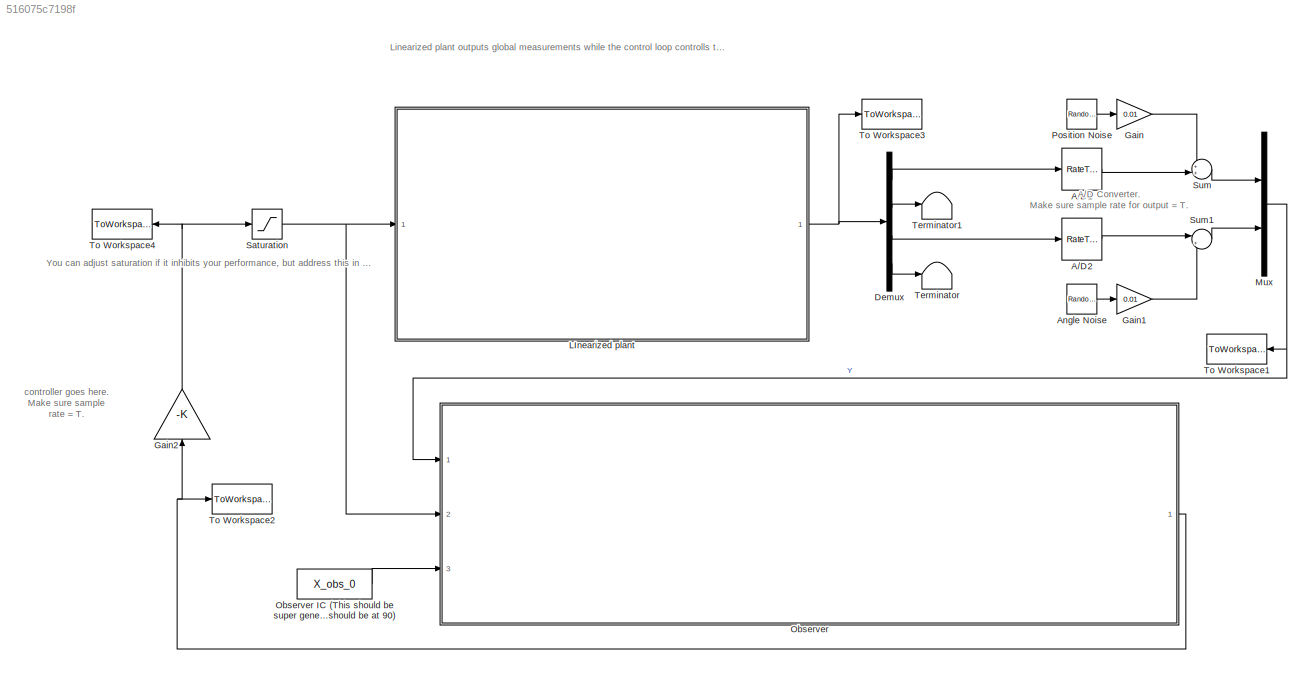
MODEL slx_516075c7198f
KIND model
CONFIG AbsTol = auto
CONFIG EnableMultiTasking = off
CONFIG FixedStep = auto
CONFIG MaxStep = auto
CONFIG MinStep = auto
CONFIG RelTol = 1e-3
CONFIG SampleTimeConstraint = Unconstrained
CONFIG Solver = VariableStepAuto
CONFIG SolverName = VariableStepAuto
CONFIG StartTime = 0.0
CONFIG StopTime = 10.0
BLOCK [RateTransition] A//D1
  OutPortSampleTime = T
BLOCK [RateTransition] A//D2
  OutPortSampleTime = T
BLOCK [RandomNumber] Angle Noise 
  SampleTime = T
  Variance = 0.5
BLOCK [Demux] Demux
  Ports = [1, 4]
BLOCK [Gain] Gain
  Gain = 0.01
BLOCK [Gain] Gain1
  Gain = 0.01
BLOCK [Gain] Gain2
  Gain = -K
  Multiplication = Matrix(K*u) (u vector)
  NameLocation = right
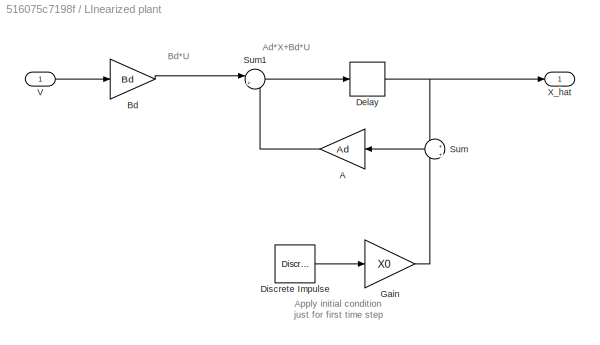
BLOCK [SubSystem] LInearized plant
  Ports = [1, 1]
  RequestExecContextInheritance = off
BLOCK [Gain] LInearized plant/A
  Gain = Ad
  Multiplication = Matrix(K*u) (u vector)
  NameLocation = top
BLOCK [Gain] LInearized plant/Bd
  Gain = Bd
  Multiplication = Matrix(K*u) (u vector)
BLOCK [Delay] LInearized plant/Delay
  DelayLength = 1
  InputPortMap = u0
  Ports = [1, 1]
BLOCK [Reference] LInearized plant/Discrete Impulse  REF=dspsrcs4/Discrete 
Impulse
  Ports = [0, 1]
  SourceBlock = dspsrcs4/Discrete \nImpulse
  SourceProductBaseCode = DS
  SourceType = Discrete Impulse
BLOCK [Gain] LInearized plant/Gain
  Gain = X0
  Multiplication = Matrix(K*u) (u vector)
BLOCK [Sum] LInearized plant/Sum
  Inputs = +|+
  NameLocation = top
  Ports = [2, 1]
BLOCK [Sum] LInearized plant/Sum1
  Inputs = |++
  Ports = [2, 1]
BLOCK [Inport] LInearized plant/V
BLOCK [Outport] LInearized plant/X_hat 
  VectorParamsAs1DForOutWhenUnconnected = off
BLOCK [Mux] Mux
  DisplayOption = bar
  Inputs = 2
  Ports = [2, 1]
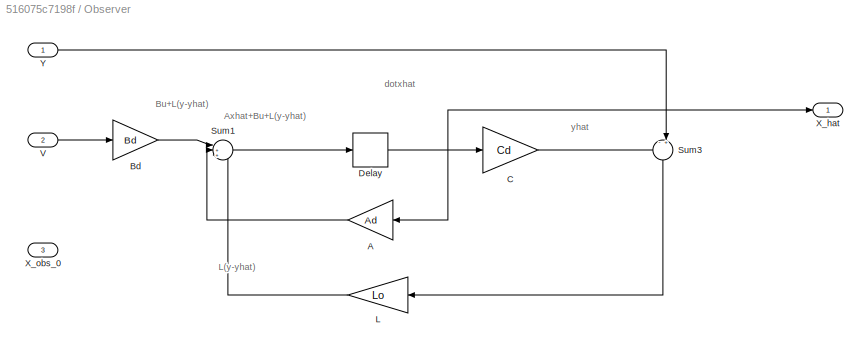
BLOCK [SubSystem] Observer
  Ports = [3, 1]
  RequestExecContextInheritance = off
BLOCK [Constant] Observer IC (This should be super generic - for example, if plant starts at 80 degrees, then this should be at 90)
  Value = X_obs_0
BLOCK [Gain] Observer/A
  Gain = Ad
  Multiplication = Matrix(K*u) (u vector)
  NameLocation = top
BLOCK [Gain] Observer/Bd
  Gain = Bd
  Multiplication = Matrix(K*u) (u vector)
BLOCK [Gain] Observer/C
  Gain = Cd
  Multiplication = Matrix(K*u) (u vector)
BLOCK [Delay] Observer/Delay
  DelayLength = 1
  InputPortMap = u0
  Ports = [1, 1]
BLOCK [Gain] Observer/L
  Gain = Lo
  Multiplication = Matrix(K*u) (u vector)
  NameLocation = top
BLOCK [Sum] Observer/Sum1
  Inputs = |+++
  Ports = [3, 1]
BLOCK [Sum] Observer/Sum3
  Inputs = -+|
  NameLocation = left
  Ports = [2, 1]
BLOCK [Inport] Observer/V
  Port = 2
BLOCK [Outport] Observer/X_hat 
  VectorParamsAs1DForOutWhenUnconnected = off
BLOCK [Inport] Observer/X_obs_0
  Port = 3
BLOCK [Inport] Observer/Y
BLOCK [RandomNumber] Position Noise
  SampleTime = T
  Variance = 0.5
BLOCK [Saturate] Saturation
  LowerLimit = -20
  UpperLimit = 20
BLOCK [Sum] Sum
  Inputs = ++|
  Ports = [2, 1]
BLOCK [Sum] Sum1
  Inputs = |++
  Ports = [2, 1]
BLOCK [Terminator] Terminator
BLOCK [Terminator] Terminator1
BLOCK [ToWorkspace] To Workspace1
  FixptAsFi = on
  MaxDataPoints = inf
  NameLocation = top
  Ports = [1]
  SampleTime = -1
  VariableName = Y_out
BLOCK [ToWorkspace] To Workspace2
  FixptAsFi = on
  MaxDataPoints = inf
  Ports = [1]
  SampleTime = -1
  VariableName = Xst
BLOCK [ToWorkspace] To Workspace3
  FixptAsFi = on
  MaxDataPoints = inf
  Ports = [1]
  SampleTime = -1
  VariableName = XLin
BLOCK [ToWorkspace] To Workspace4
  FixptAsFi = on
  MaxDataPoints = inf
  NameLocation = top
  Ports = [1]
  SampleTime = -1
  VariableName = In
ANNOTATION (root): Linearized plant outputs global measurements while the control loop controlls the deviations from equil
ANNOTATION (root): A/D Converter. Make sure sample rate for output = T.
ANNOTATION (root): You can adjust saturation if it inhibits your performance, but address this in your report for why this is not realistic
ANNOTATION (root): controller goes here. Make sure sample rate = T.
ANNOTATION LInearized plant: Bd*U
ANNOTATION LInearized plant: Ad*X+Bd*U
ANNOTATION LInearized plant: Apply initial condition just for first time step
ANNOTATION Observer: Axhat+Bu+L(y-yhat)
ANNOTATION Observer: Bu+L(y-yhat)
ANNOTATION Observer: L(y-yhat)
ANNOTATION Observer: dotxhat
ANNOTATION Observer: yhat
LINE A//D1:1 -> Sum:2
LINE A//D2:1 -> Sum1:1
LINE Angle Noise :1 -> Gain1:1
LINE Demux:1 -> A//D1:1
LINE Demux:2 -> Terminator1:1
LINE Demux:3 -> A//D2:1
LINE Demux:4 -> Terminator:1
LINE Gain1:1 -> Sum1:2
NET Gain2:1 -> Saturation:1, To Workspace4:1
LINE Gain:1 -> Sum:1
LINE LInearized plant/A:1 -> LInearized plant/Sum1:2
LINE LInearized plant/Bd:1 -> LInearized plant/Sum1:1
NET LInearized plant/Delay:1 -> LInearized plant/Sum:1, LInearized plant/X_hat :1
LINE LInearized plant/Discrete Impulse:1 -> LInearized plant/Gain:1
LINE LInearized plant/Gain:1 -> LInearized plant/Sum:2
LINE LInearized plant/Sum1:1 -> LInearized plant/Delay:1
LINE LInearized plant/Sum:1 -> LInearized plant/A:1
LINE LInearized plant/V:1 -> LInearized plant/Bd:1
NET LInearized plant:1 -> Demux:1, To Workspace3:1
NET Mux:1 -> Observer:1, To Workspace1:1
LINE Observer IC (This should be super generic - for example, if plant starts at 80 degrees, then this should be at 90):1 -> Observer:3
LINE Observer/A:1 -> Observer/Sum1:2
LINE Observer/Bd:1 -> Observer/Sum1:1
LINE Observer/C:1 -> Observer/Sum3:1
NET Observer/Delay:1 -> Observer/A:1, Observer/C:1, Observer/X_hat :1
LINE Observer/L:1 -> Observer/Sum1:3
LINE Observer/Sum1:1 -> Observer/Delay:1
LINE Observer/Sum3:1 -> Observer/L:1
LINE Observer/V:1 -> Observer/Bd:1
LINE Observer/Y:1 -> Observer/Sum3:2
NET Observer:1 -> Gain2:1, To Workspace2:1
LINE Position Noise:1 -> Gain:1
NET Saturation:1 -> LInearized plant:1, Observer:2
LINE Sum1:1 -> Mux:2
LINE Sum:1 -> Mux:1
note: NET lines group one-source signal fan-out (src -> all destinations, sorted); 1:1 wires keep LINE
